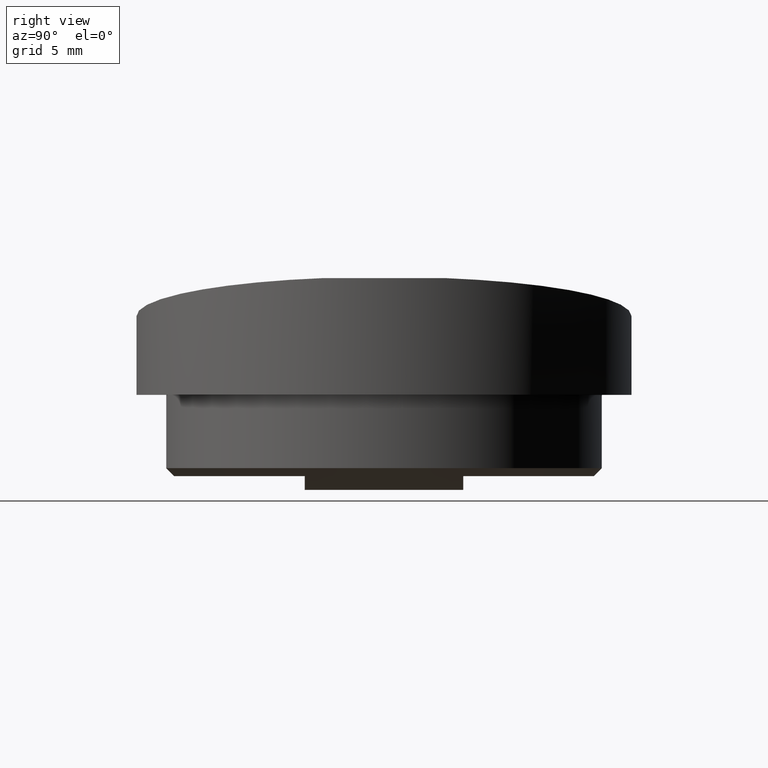
[diagram: clean part render]
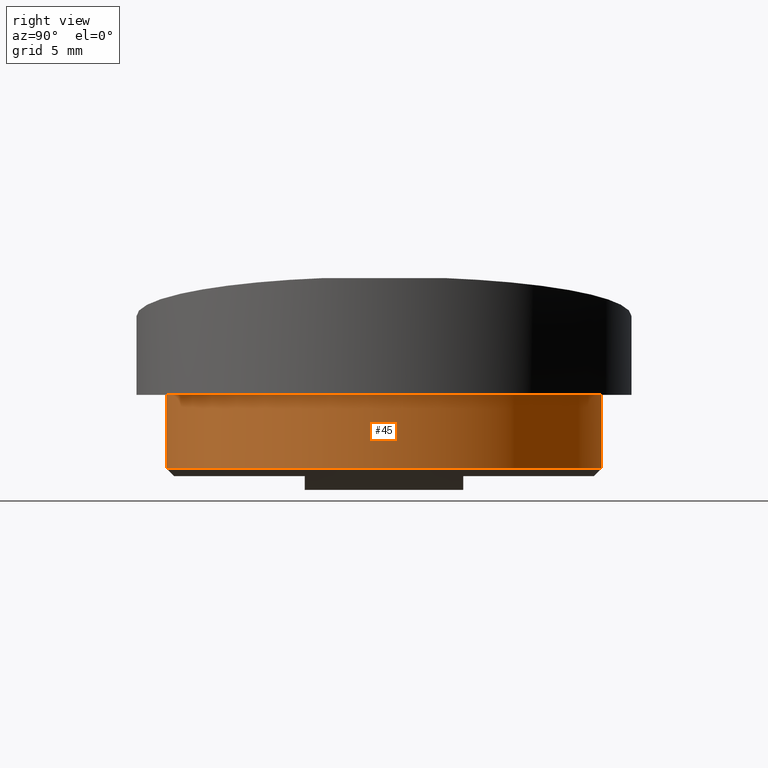
[diagram: same view with one face highlighted and labeled with its STEP entity id]
A machine part, right view. The second image highlights one B-rep face of the part: STEP entity #45.
In plain terms, the highlighted cylindrical surface (partial cylindrical patch) has radius 11 mm, axis along (-0, 0, -1).
Its self-contained STEP definition (entity closure, byte-faithful):
#45 = ADVANCED_FACE ( 'NONE', ( #463 ), #946, .T. ) ;
#62 = CARTESIAN_POINT ( 'NONE',  ( 4.099999999999999600, -5.084455053182335500E-032, 11.00000000000000000 ) ) ;
#67 = CARTESIAN_POINT ( 'NONE',  ( 4.099999999999999600, 1.347111479062083700E-015, -11.00000000000000000 ) ) ;
#85 = EDGE_LOOP ( 'NONE', ( #639, #307, #695, #704 ) ) ;
#283 = CIRCLE ( 'NONE', #501, 11.00000000000000000 ) ;
#307 = ORIENTED_EDGE ( 'NONE', *, *, #970, .T. ) ;
#320 = CARTESIAN_POINT ( 'NONE',  ( -34.06605724148839400, 1.347111479062087600E-015, -11.00000000000000000 ) ) ;
#329 = CARTESIAN_POINT ( 'NONE',  ( 0.3999999999999975800, 1.347111479062083700E-015, -11.00000000000000000 ) ) ;
#345 = CARTESIAN_POINT ( 'NONE',  ( -34.06605724148839400, -5.084455053182335500E-032, 11.00000000000000000 ) ) ;
#348 = DIRECTION ( 'NONE',  ( -1.000000000000000000, 1.109335647967048500E-031, 1.232595164407831800E-032 ) ) ;
#363 = DIRECTION ( 'NONE',  ( -1.000000000000000000, 1.109335647967048500E-031, 1.232595164407831800E-032 ) ) ;
#430 = CIRCLE ( 'NONE', #475, 11.00000000000000000 ) ;
#456 = VECTOR ( 'NONE', #348, 1000.000000000000000 ) ;
#463 = FACE_OUTER_BOUND ( 'NONE', #85, .T. ) ;
#475 = AXIS2_PLACEMENT_3D ( 'NONE', #603, #607, #608 ) ;
#487 = VERTEX_POINT ( 'NONE', #329 ) ;
#501 = AXIS2_PLACEMENT_3D ( 'NONE', #534, #543, #546 ) ;
#534 = CARTESIAN_POINT ( 'NONE',  ( 0.3999999999999975800, 0.0000000000000000000, -2.958228394578794300E-028 ) ) ;
#543 = DIRECTION ( 'NONE',  ( -1.000000000000000000, 1.109335647967048500E-031, 1.232595164407831800E-032 ) ) ;
#546 = DIRECTION ( 'NONE',  ( 0.0000000000000000000, -4.622231866529396200E-033, 1.000000000000000000 ) ) ;
#589 = VECTOR ( 'NONE', #363, 1000.000000000000000 ) ;
#603 = CARTESIAN_POINT ( 'NONE',  ( 4.099999999999999600, 0.0000000000000000000, 0.0000000000000000000 ) ) ;
#607 = DIRECTION ( 'NONE',  ( -1.000000000000000000, 1.109335647967048500E-031, 1.232595164407831800E-032 ) ) ;
#608 = DIRECTION ( 'NONE',  ( 0.0000000000000000000, -4.622231866529396200E-033, 1.000000000000000000 ) ) ;
#619 = VERTEX_POINT ( 'NONE', #62 ) ;
#638 = CARTESIAN_POINT ( 'NONE',  ( 0.3999999999999975800, -5.084455053182335500E-032, 11.00000000000000000 ) ) ;
#639 = ORIENTED_EDGE ( 'NONE', *, *, #921, .F. ) ;
#664 = VERTEX_POINT ( 'NONE', #67 ) ;
#695 = ORIENTED_EDGE ( 'NONE', *, *, #914, .T. ) ;
#704 = ORIENTED_EDGE ( 'NONE', *, *, #965, .F. ) ;
#767 = VERTEX_POINT ( 'NONE', #638 ) ;
#796 = AXIS2_PLACEMENT_3D ( 'NONE', #840, #818, #806 ) ;
#806 = DIRECTION ( 'NONE',  ( 0.0000000000000000000, -4.622231866529396200E-033, 1.000000000000000000 ) ) ;
#818 = DIRECTION ( 'NONE',  ( -1.000000000000000000, 1.109335647967048500E-031, 1.232595164407831800E-032 ) ) ;
#836 = LINE ( 'NONE', #345, #456 ) ;
#840 = CARTESIAN_POINT ( 'NONE',  ( -34.06605724148839400, 0.0000000000000000000, -2.958228394578794300E-028 ) ) ;
#914 = EDGE_CURVE ( 'NONE', #619, #767, #836, .T. ) ;
#921 = EDGE_CURVE ( 'NONE', #664, #487, #982, .T. ) ;
#946 = CYLINDRICAL_SURFACE ( 'NONE', #796, 11.00000000000000000 ) ;
#965 = EDGE_CURVE ( 'NONE', #487, #767, #283, .T. ) ;
#970 = EDGE_CURVE ( 'NONE', #664, #619, #430, .T. ) ;
#982 = LINE ( 'NONE', #320, #589 ) ;